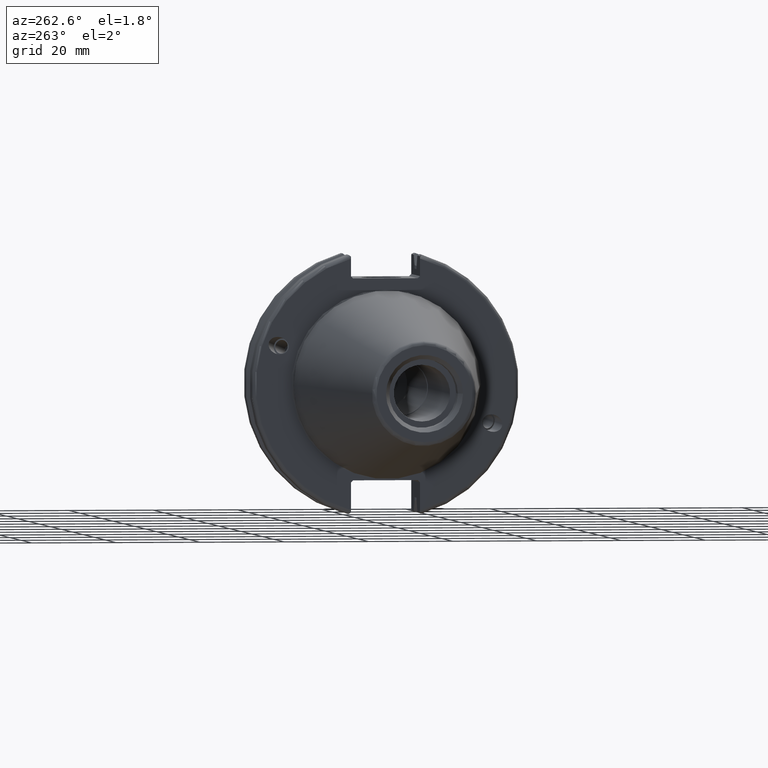
[diagram: clean part render]
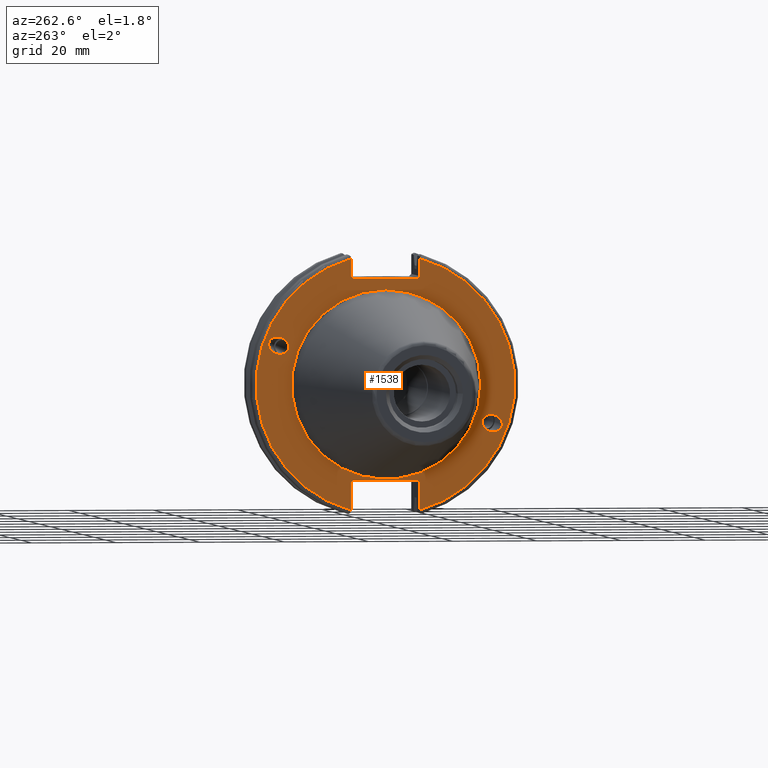
[diagram: same view with one face highlighted and labeled with its STEP entity id]
A machine part, auxiliary view. The second image highlights one B-rep face of the part: STEP entity #1538.
In plain terms, the highlighted planar face has unit normal (-1, 0, 0).
Its self-contained STEP definition (entity closure, byte-faithful):
#39=ELLIPSE('',#1665,2.44154917752292,2.00000000000001);
#48=ELLIPSE('',#1708,2.44154917752292,2.00000000000001);
#155=LINE('',#2728,#249);
#156=LINE('',#2730,#250);
#157=LINE('',#2732,#251);
#158=LINE('',#2734,#252);
#159=LINE('',#2736,#253);
#160=LINE('',#2740,#254);
#161=LINE('',#2742,#255);
#162=LINE('',#2744,#256);
#163=LINE('',#2746,#257);
#164=LINE('',#2747,#258);
#249=VECTOR('',#2065,10.);
#250=VECTOR('',#2066,10.);
#251=VECTOR('',#2067,10.);
#252=VECTOR('',#2068,10.);
#253=VECTOR('',#2069,10.);
#254=VECTOR('',#2072,10.);
#255=VECTOR('',#2073,10.);
#256=VECTOR('',#2074,10.);
#257=VECTOR('',#2075,10.);
#258=VECTOR('',#2076,10.);
#319=FACE_BOUND('',#504,.T.);
#320=FACE_BOUND('',#505,.T.);
#321=FACE_BOUND('',#506,.T.);
#337=PLANE('',#1718);
#405=FACE_OUTER_BOUND('',#503,.T.);
#503=EDGE_LOOP('',(#1247,#1248,#1249,#1250,#1251,#1252,#1253,#1254,#1255,
#1256,#1257,#1258));
#504=EDGE_LOOP('',(#1259));
#505=EDGE_LOOP('',(#1260));
#506=EDGE_LOOP('',(#1261));
#603=CIRCLE('',#1716,22.3);
#605=CIRCLE('',#1719,30.75);
#606=CIRCLE('',#1720,30.75);
#685=VERTEX_POINT('',#2521);
#725=VERTEX_POINT('',#2704);
#730=VERTEX_POINT('',#2719);
#731=VERTEX_POINT('',#2724);
#732=VERTEX_POINT('',#2725);
#733=VERTEX_POINT('',#2727);
#734=VERTEX_POINT('',#2729);
#735=VERTEX_POINT('',#2731);
#736=VERTEX_POINT('',#2733);
#737=VERTEX_POINT('',#2735);
#738=VERTEX_POINT('',#2737);
#739=VERTEX_POINT('',#2739);
#740=VERTEX_POINT('',#2741);
#741=VERTEX_POINT('',#2743);
#742=VERTEX_POINT('',#2745);
#857=EDGE_CURVE('',#685,#685,#39,.T.);
#913=EDGE_CURVE('',#725,#725,#48,.T.);
#920=EDGE_CURVE('',#730,#730,#603,.T.);
#922=EDGE_CURVE('',#731,#732,#605,.T.);
#923=EDGE_CURVE('',#731,#733,#155,.T.);
#924=EDGE_CURVE('',#734,#733,#156,.T.);
#925=EDGE_CURVE('',#734,#735,#157,.T.);
#926=EDGE_CURVE('',#736,#735,#158,.T.);
#927=EDGE_CURVE('',#736,#737,#159,.T.);
#928=EDGE_CURVE('',#738,#737,#606,.T.);
#929=EDGE_CURVE('',#738,#739,#160,.T.);
#930=EDGE_CURVE('',#740,#739,#161,.T.);
#931=EDGE_CURVE('',#740,#741,#162,.T.);
#932=EDGE_CURVE('',#742,#741,#163,.T.);
#933=EDGE_CURVE('',#742,#732,#164,.T.);
#1247=ORIENTED_EDGE('',*,*,#922,.F.);
#1248=ORIENTED_EDGE('',*,*,#923,.T.);
#1249=ORIENTED_EDGE('',*,*,#924,.F.);
#1250=ORIENTED_EDGE('',*,*,#925,.T.);
#1251=ORIENTED_EDGE('',*,*,#926,.F.);
#1252=ORIENTED_EDGE('',*,*,#927,.T.);
#1253=ORIENTED_EDGE('',*,*,#928,.F.);
#1254=ORIENTED_EDGE('',*,*,#929,.T.);
#1255=ORIENTED_EDGE('',*,*,#930,.F.);
#1256=ORIENTED_EDGE('',*,*,#931,.T.);
#1257=ORIENTED_EDGE('',*,*,#932,.F.);
#1258=ORIENTED_EDGE('',*,*,#933,.T.);
#1259=ORIENTED_EDGE('',*,*,#857,.T.);
#1260=ORIENTED_EDGE('',*,*,#913,.T.);
#1261=ORIENTED_EDGE('',*,*,#920,.F.);
#1538=ADVANCED_FACE('',(#405,#319,#320,#321),#337,.T.);
#1665=AXIS2_PLACEMENT_3D('',#2523,#1936,#1937);
#1708=AXIS2_PLACEMENT_3D('',#2706,#2039,#2040);
#1716=AXIS2_PLACEMENT_3D('',#2721,#2057,#2058);
#1718=AXIS2_PLACEMENT_3D('',#2723,#2061,#2062);
#1719=AXIS2_PLACEMENT_3D('',#2726,#2063,#2064);
#1720=AXIS2_PLACEMENT_3D('',#2738,#2070,#2071);
#1936=DIRECTION('center_axis',(1.,0.,0.));
#1937=DIRECTION('ref_axis',(5.68400912649E-17,-0.939692620785909,-0.342020143325667));
#2039=DIRECTION('center_axis',(1.,0.,0.));
#2040=DIRECTION('ref_axis',(5.68400912649E-17,0.939692620785909,0.342020143325667));
#2057=DIRECTION('center_axis',(-1.,0.,0.));
#2058=DIRECTION('ref_axis',(0.,-1.,1.83697019872103E-16));
#2061=DIRECTION('center_axis',(-1.,0.,0.));
#2062=DIRECTION('ref_axis',(0.,0.,1.));
#2063=DIRECTION('center_axis',(1.,0.,0.));
#2064=DIRECTION('ref_axis',(0.,-1.,1.60812264967664E-16));
#2065=DIRECTION('',(0.,0.,-1.));
#2066=DIRECTION('',(0.,-0.70710678118655,0.707106781186545));
#2067=DIRECTION('',(0.,1.,0.));
#2068=DIRECTION('',(0.,-0.707106781186549,-0.707106781186546));
#2069=DIRECTION('',(0.,0.,1.));
#2070=DIRECTION('center_axis',(1.,0.,0.));
#2071=DIRECTION('ref_axis',(0.,1.,1.60812264967664E-16));
#2072=DIRECTION('',(0.,0.,1.));
#2073=DIRECTION('',(0.,0.707106781186549,-0.707106781186546));
#2074=DIRECTION('',(0.,-1.,0.));
#2075=DIRECTION('',(0.,0.707106781186549,0.707106781186546));
#2076=DIRECTION('',(0.,0.,-1.));
#2521=CARTESIAN_POINT('',(3.175,-23.0773950158153,-8.39948487016));
#2523=CARTESIAN_POINT('Origin',(3.175,-25.3717007612195,-9.23454386979305));
#2704=CARTESIAN_POINT('',(3.175,23.0773950158153,8.39948487016));
#2706=CARTESIAN_POINT('Origin',(3.175,25.3717007612195,9.23454386979306));
#2719=CARTESIAN_POINT('',(3.175,-2.7309623620986E-15,22.3));
#2721=CARTESIAN_POINT('Origin',(3.175,0.,0.));
#2723=CARTESIAN_POINT('Origin',(3.175,31.75,0.));
#2724=CARTESIAN_POINT('',(3.175,-8.18999999999999,29.6392712461019));
#2725=CARTESIAN_POINT('',(3.175,-8.19,-29.6392712461019));
#2726=CARTESIAN_POINT('Origin',(3.175,0.,0.));
#2727=CARTESIAN_POINT('',(3.175,-8.18999999999999,25.5));
#2728=CARTESIAN_POINT('',(3.175,-8.18999999999999,12.5));
#2729=CARTESIAN_POINT('',(3.175,-7.68999999999999,25.));
#2730=CARTESIAN_POINT('',(3.175,8.29500000000007,9.01500000000004));
#2731=CARTESIAN_POINT('',(3.175,7.69,25.));
#2732=CARTESIAN_POINT('',(3.175,15.875,25.));
#2733=CARTESIAN_POINT('',(3.175,8.19,25.5));
#2734=CARTESIAN_POINT('',(3.175,7.58000000000002,24.89));
#2735=CARTESIAN_POINT('',(3.175,8.19,29.6392712461019));
#2736=CARTESIAN_POINT('',(3.175,8.19,12.5));
#2737=CARTESIAN_POINT('',(3.175,8.18999999999999,-29.6392712461019));
#2738=CARTESIAN_POINT('Origin',(3.175,0.,0.));
#2739=CARTESIAN_POINT('',(3.175,8.18999999999999,-23.1));
#2740=CARTESIAN_POINT('',(3.175,8.18999999999999,-11.3));
#2741=CARTESIAN_POINT('',(3.175,7.69,-22.6));
#2742=CARTESIAN_POINT('',(3.175,8.18000000000002,-23.09));
#2743=CARTESIAN_POINT('',(3.175,-7.69,-22.6));
#2744=CARTESIAN_POINT('',(3.175,15.875,-22.6));
#2745=CARTESIAN_POINT('',(3.175,-8.19,-23.1));
#2746=CARTESIAN_POINT('',(3.175,7.69500000000004,-7.21500000000002));
#2747=CARTESIAN_POINT('',(3.175,-8.19,-11.3));